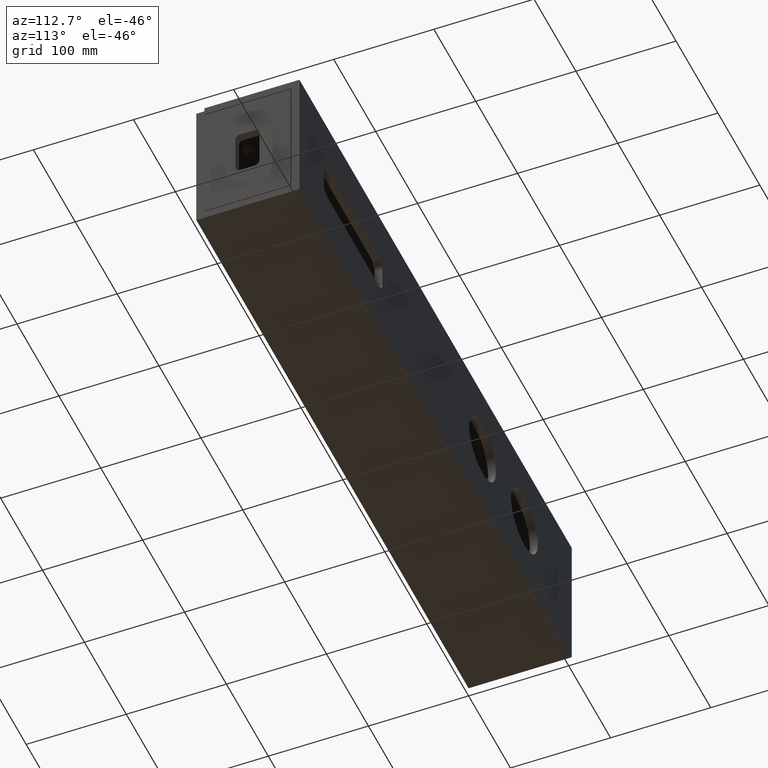
[diagram: clean part render]
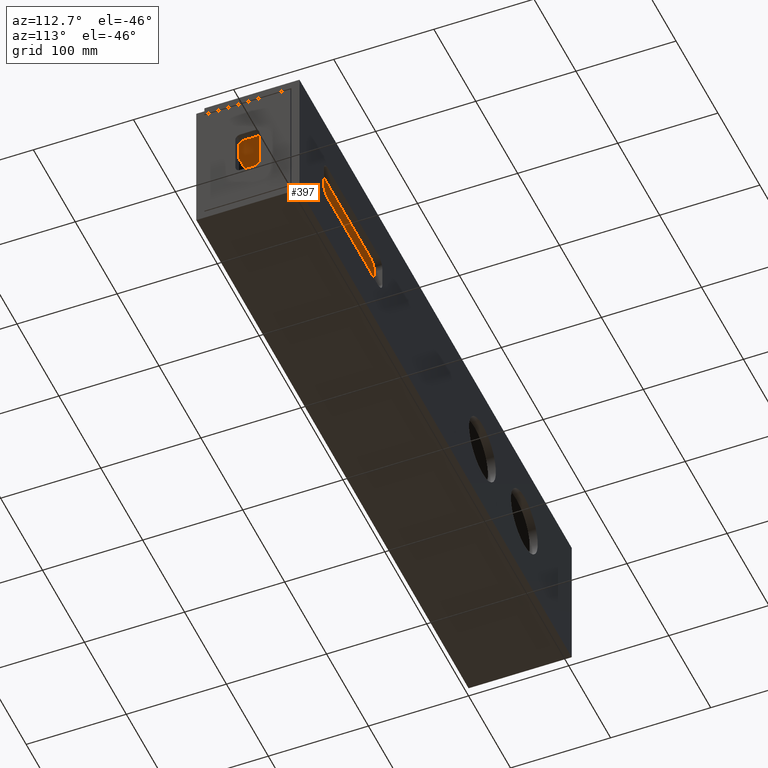
[diagram: same view with one face highlighted and labeled with its STEP entity id]
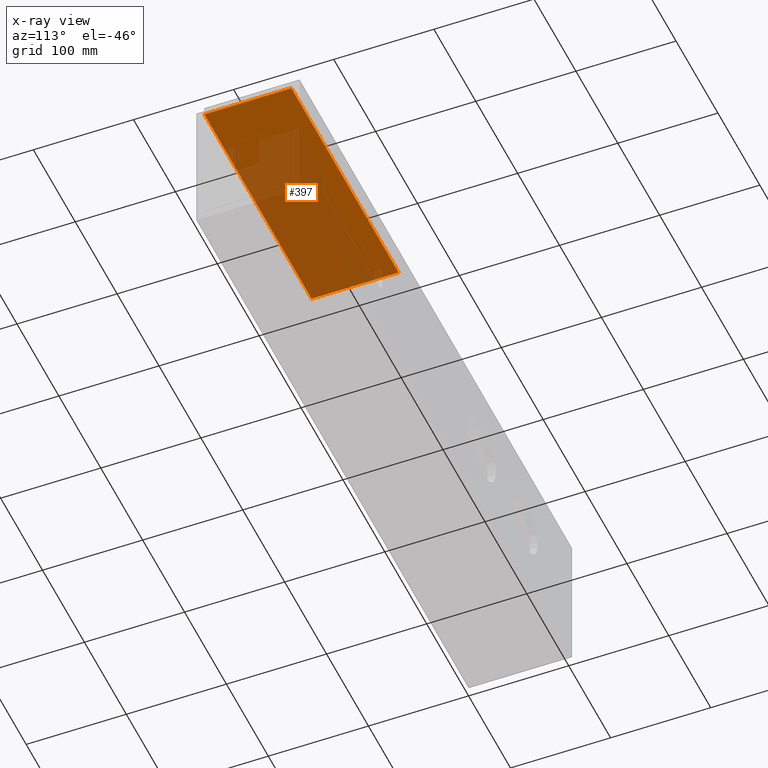
[diagram: x-ray of the same camera — body ghosted, the highlighted face saturated]
A machine part, auxiliary view. The second image highlights one B-rep face of the part: STEP entity #397.
The next image is the same camera in x-ray: the body ghosted, the highlighted face saturated — about 60% of this face is hidden behind the body in this view.
In plain terms, the highlighted planar face has unit normal (0, 0, -1).
Its self-contained STEP definition (entity closure, byte-faithful):
#75 = DIRECTION ( 'NONE',  ( -1.000000000000000000, -0.0000000000000000000, -0.0000000000000000000 ) ) ;
#76 = CARTESIAN_POINT ( 'NONE',  ( 650.0000000000000000, 94.99999999999997158, 136.9999999999999432 ) ) ;
#77 = LINE ( 'NONE', #76, #550 ) ;
#78 = DIRECTION ( 'NONE',  ( -1.000000000000000000, 0.0000000000000000000, -0.0000000000000000000 ) ) ;
#79 = DIRECTION ( 'NONE',  ( 0.0000000000000000000, 0.0000000000000000000, -1.000000000000000000 ) ) ;
#80 = CARTESIAN_POINT ( 'NONE',  ( 650.0000000000000000, 8.000000000000000000, 136.9999999999999432 ) ) ;
#81 = PLANE ( 'NONE',  #1525 ) ;
#83 = FACE_OUTER_BOUND ( 'NONE', #1340, .T. ) ;
#193 = CARTESIAN_POINT ( 'NONE',  ( 650.0000000000000000, 8.000000000000000000, 136.9999999999999432 ) ) ;
#397 = ADVANCED_FACE ( 'NONE', ( #83 ), #81, .T. ) ;
#398 = EDGE_CURVE ( 'NONE', #612, #1253, #77, .T. ) ;
#482 = EDGE_CURVE ( 'NONE', #1403, #841, #1557, .T. ) ;
#497 = EDGE_CURVE ( 'NONE', #612, #1403, #1537, .T. ) ;
#503 = ORIENTED_EDGE ( 'NONE', *, *, #497, .T. ) ;
#517 = ORIENTED_EDGE ( 'NONE', *, *, #482, .T. ) ;
#537 = VECTOR ( 'NONE', #932, 1000.000000000000000 ) ;
#550 = VECTOR ( 'NONE', #75, 1000.000000000000000 ) ;
#612 = VERTEX_POINT ( 'NONE', #1451 ) ;
#775 = CARTESIAN_POINT ( 'NONE',  ( 650.0000000000000000, 8.000000000000000000, 136.9999999999999432 ) ) ;
#841 = VERTEX_POINT ( 'NONE', #1053 ) ;
#861 = CARTESIAN_POINT ( 'NONE',  ( 393.9999999999999432, 94.99999999999997158, 136.9999999999999432 ) ) ;
#932 = DIRECTION ( 'NONE',  ( 0.0000000000000000000, -1.000000000000000000, 0.0000000000000000000 ) ) ;
#934 = CARTESIAN_POINT ( 'NONE',  ( 393.9999999999999432, 8.000000000000000000, 136.9999999999999432 ) ) ;
#935 = LINE ( 'NONE', #934, #537 ) ;
#981 = VECTOR ( 'NONE', #1534, 1000.000000000000000 ) ;
#1030 = EDGE_CURVE ( 'NONE', #1253, #841, #935, .T. ) ;
#1053 = CARTESIAN_POINT ( 'NONE',  ( 393.9999999999999432, 8.000000000000000000, 136.9999999999999432 ) ) ;
#1075 = VECTOR ( 'NONE', #1556, 1000.000000000000000 ) ;
#1253 = VERTEX_POINT ( 'NONE', #861 ) ;
#1340 = EDGE_LOOP ( 'NONE', ( #1362, #1390, #503, #517 ) ) ;
#1362 = ORIENTED_EDGE ( 'NONE', *, *, #1030, .F. ) ;
#1390 = ORIENTED_EDGE ( 'NONE', *, *, #398, .F. ) ;
#1403 = VERTEX_POINT ( 'NONE', #775 ) ;
#1451 = CARTESIAN_POINT ( 'NONE',  ( 650.0000000000000000, 94.99999999999997158, 136.9999999999999432 ) ) ;
#1525 = AXIS2_PLACEMENT_3D ( 'NONE', #80, #79, #78 ) ;
#1534 = DIRECTION ( 'NONE',  ( -0.0000000000000000000, -1.000000000000000000, -0.0000000000000000000 ) ) ;
#1536 = CARTESIAN_POINT ( 'NONE',  ( 650.0000000000000000, 8.000000000000000000, 136.9999999999999432 ) ) ;
#1537 = LINE ( 'NONE', #1536, #981 ) ;
#1556 = DIRECTION ( 'NONE',  ( -1.000000000000000000, -0.0000000000000000000, -0.0000000000000000000 ) ) ;
#1557 = LINE ( 'NONE', #193, #1075 ) ;